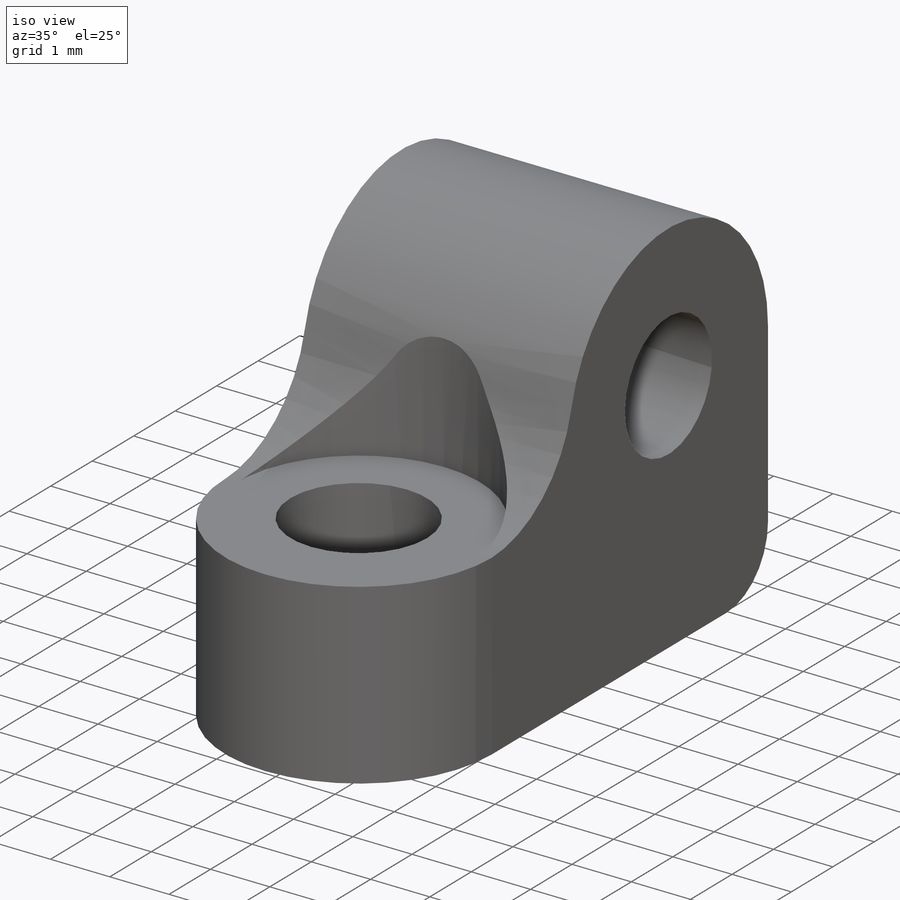
[diagram: iso view]
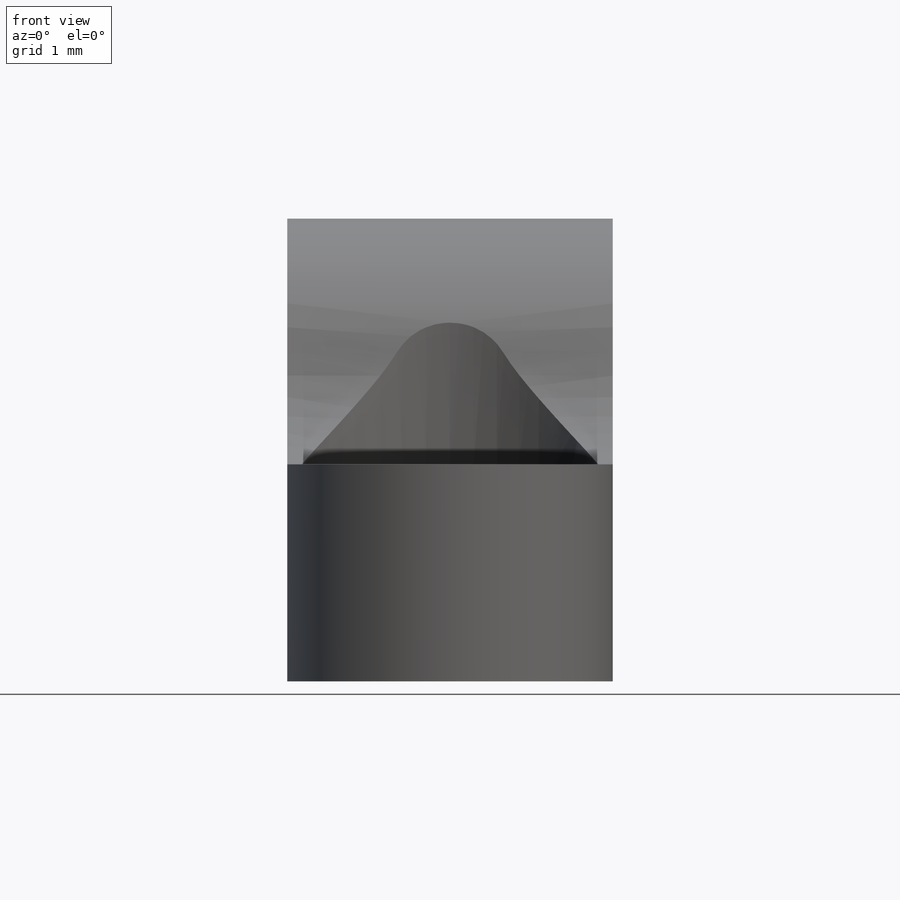
[diagram: front view]
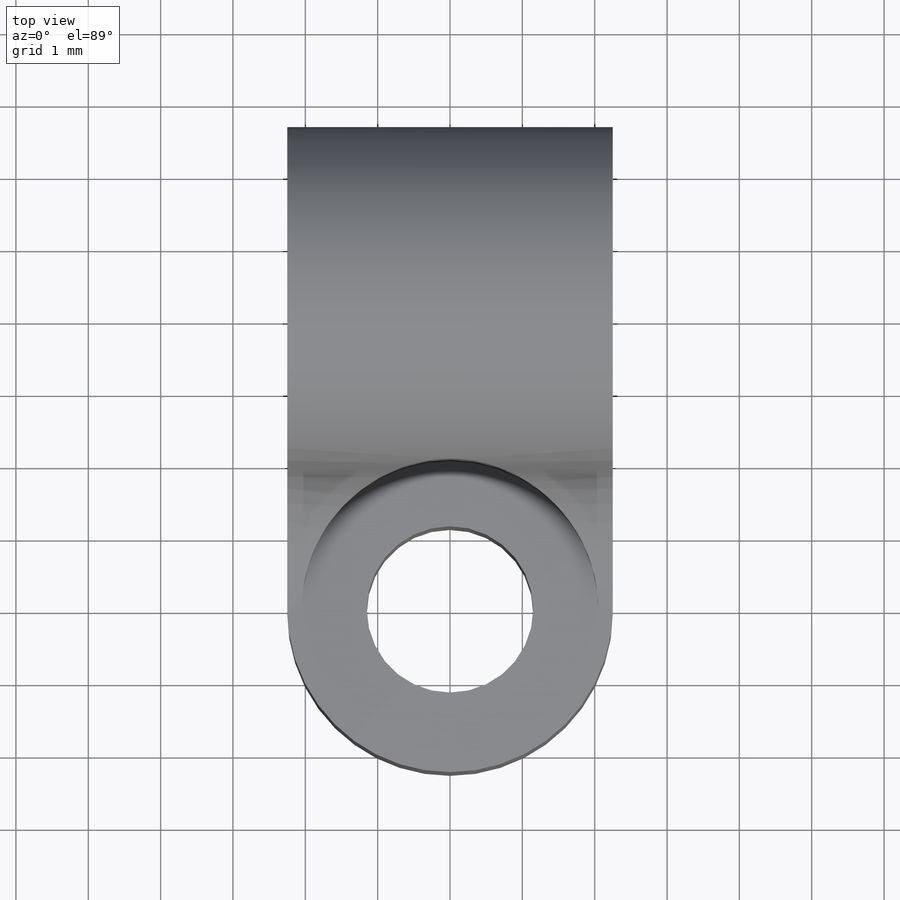
[diagram: top view]
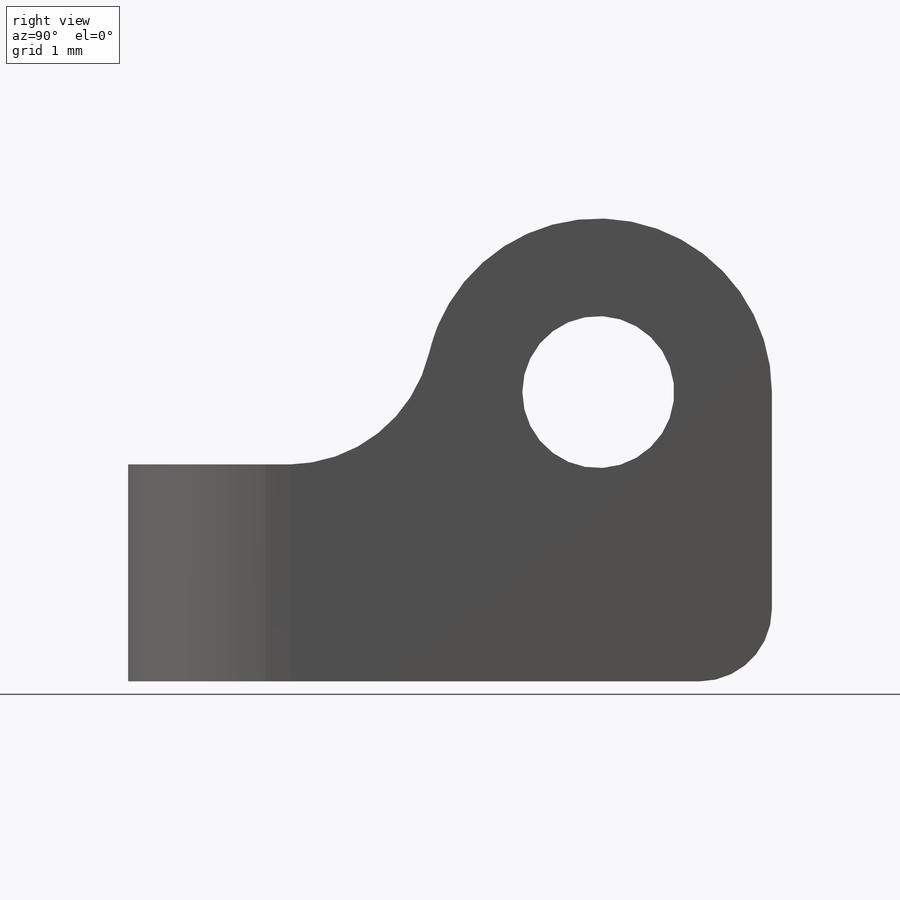
[diagram: right view]
SOLIDWORKS PART (.sldprt)
format: sldprt  version: not decoded by parser v0  size: 238,592 bytes
history: native  units: mm
features: sketch x4, plane x3, extrude x2, cut_extrude x2, fillet x2, material x1 (+10 scaffold rows collapsed)
feature tree (24):
  scaffold x10  (default folders/planes/origin — collapsed)
  material  "材质 <未指定>"
  plane  "前视基准面"
  plane  "上视基准面"
  plane  "右视基准面"
  sketch  "草图1"  dims[D1=2.3mm D2=4.5mm D3=5.5mm]
  extrude  "凸台-拉伸1"  Depth=3mm
  sketch  "草图2"  dims[c1.D1=2.1mm c1.D2=~2.34748mm c1.D4=4.1mm c1.D3=4.0mm c2.D2=4.8mm]
  extrude  "凸台-拉伸2"  [1 undecoded]
  sketch  "草图3"  dims[D1=4.1mm]
  cut_extrude  "切除-拉伸2"  [1 undecoded]
  sketch  "草图2<4>"  dims[D1=10.0mm]
  fillet  "圆角1"  Radius=1mm
  fillet  "圆角2"  Radius=2mm
  cut_extrude  "切除-拉伸1"  Depth=10mm
decode coverage: 8 of 10 modeling features carry decoded parameters
note: ~ marks probable driven/reference dimensions
note: 2 parameter values undecoded
note: suppression state not decoded; provenance and decode notes live in map.json
